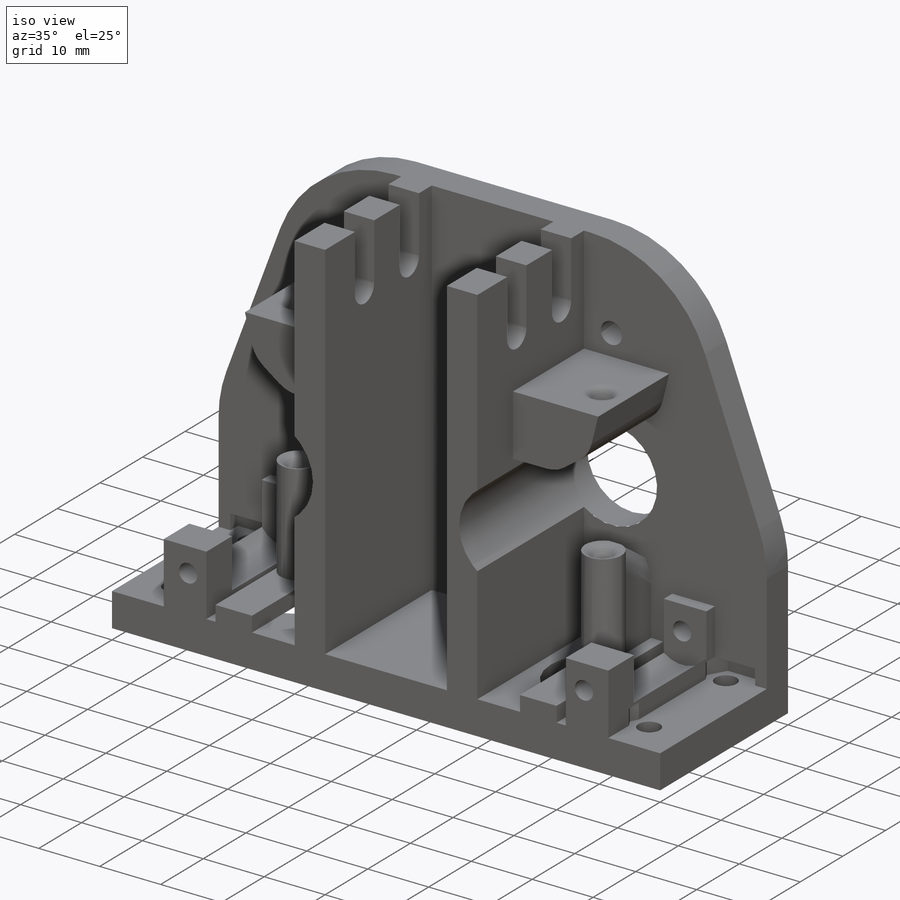
[diagram: iso view]
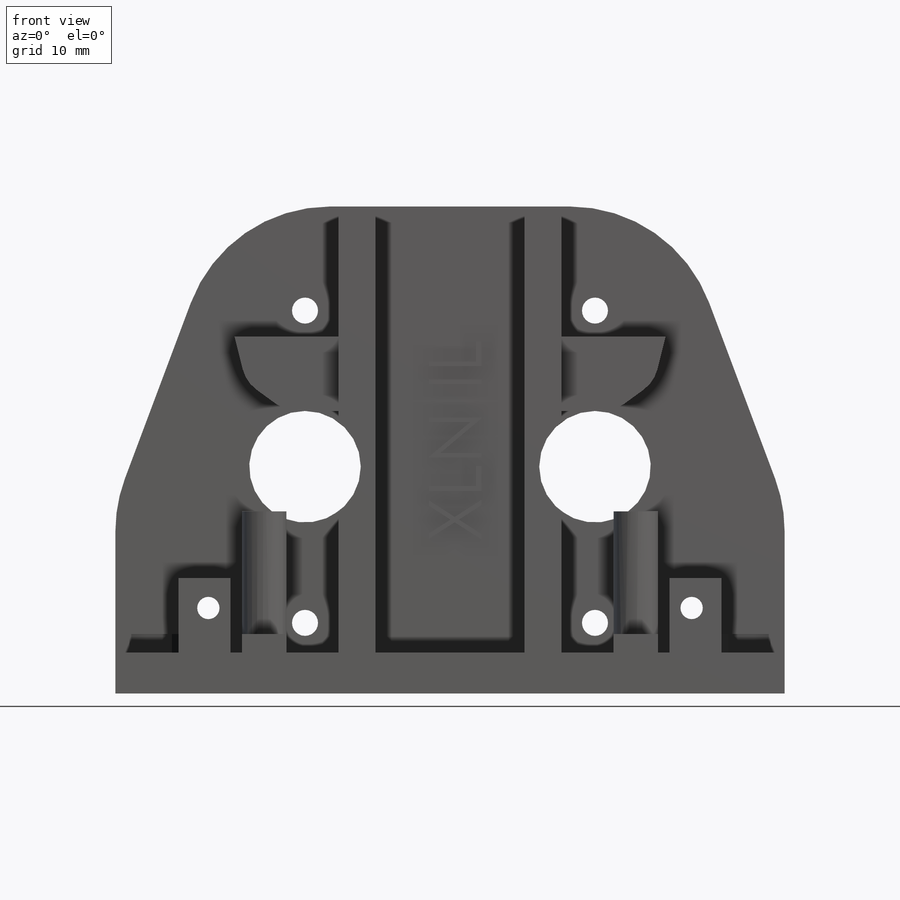
[diagram: front view]
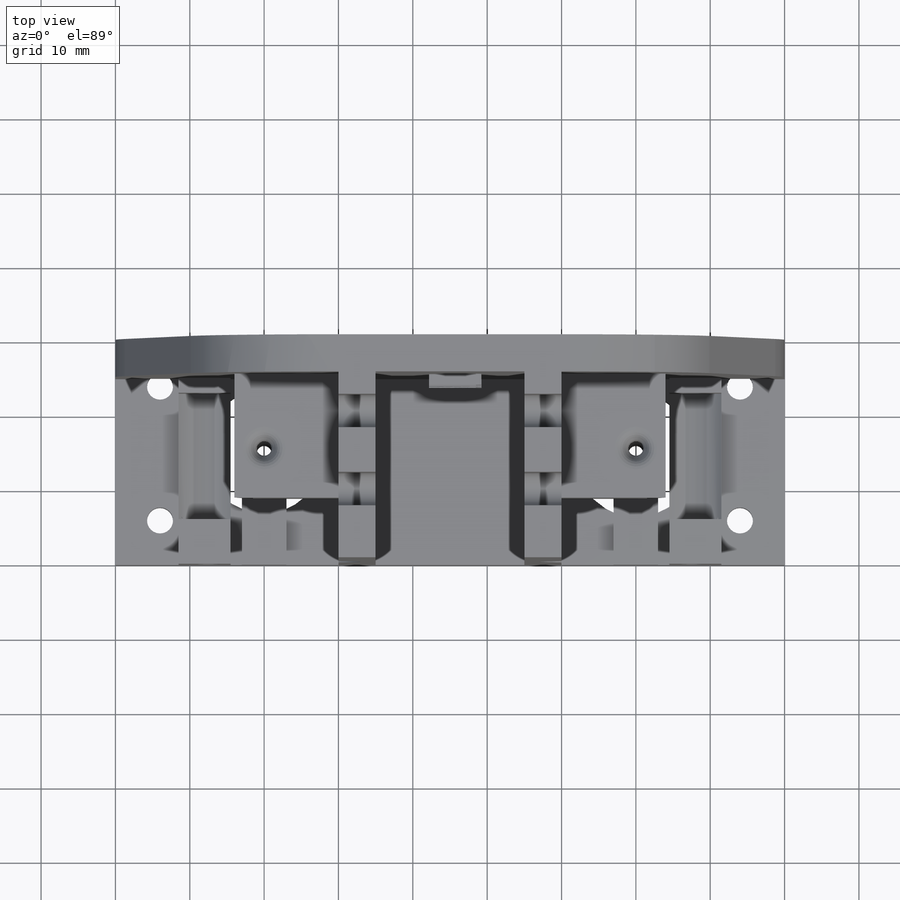
[diagram: top view]
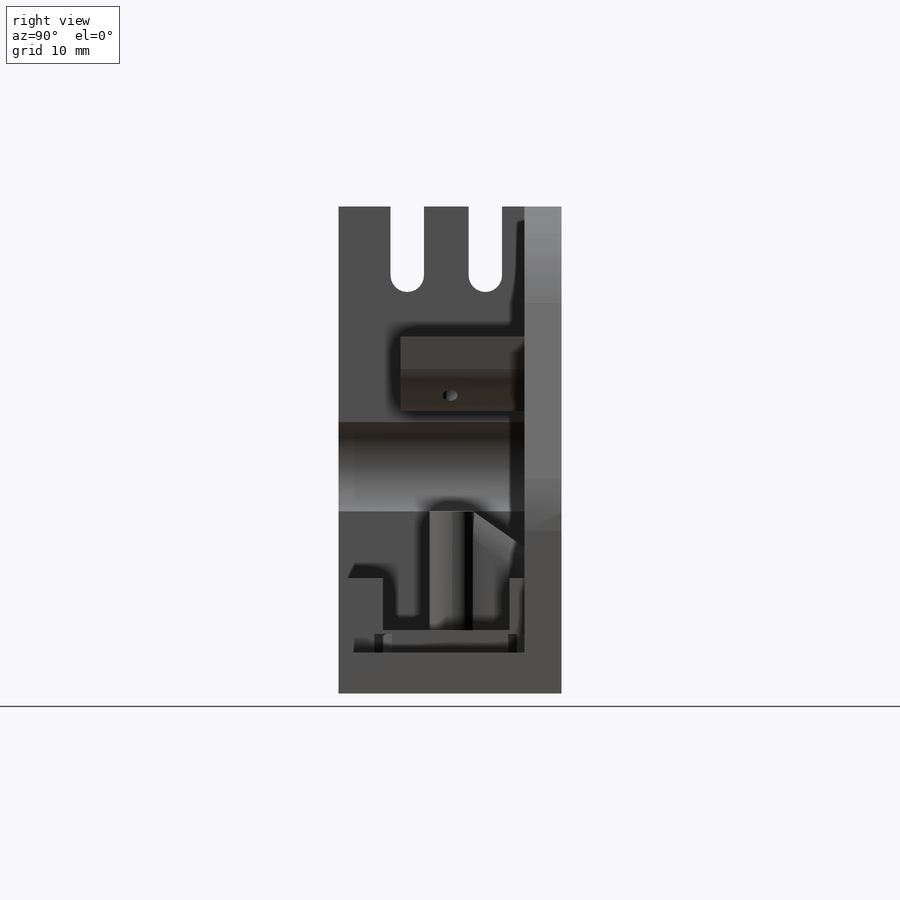
[diagram: right view]
SOLIDWORKS PART (.sldprt)
format: sldprt  version: not decoded by parser v0  size: 857,600 bytes
history: native  units: mm
features: sketch x18, cut_extrude x11, extrude x7, chamfer x4, fillet x4, material x1 (+12 scaffold rows collapsed)
feature tree (57):
  scaffold x12  (default folders/planes/origin — collapsed)
  material  "ABS PC"
  sketch  "Sketch2"  dims[c1.D1=~41.605073mm c1.D2=~117.980955mm c2.D1=30.0mm c2.D2=90.0mm]
  extrude  "Boss-Extrude1"  Depth=5.5mm
  sketch  "Sketch3"  dims[c1.D1=~5.776537mm c1.D5=3.5mm c1.D7=3.5mm c1.D8=3.5mm c1.D9=3.5mm c2.D1=16.5mm c2.D4=12.1mm c2.D10=16.5mm c3.D1=12.1mm c3.D2=20.0mm c3.D3=50.0mm c3.D4=15.0mm c3.D6=6.0mm c3.D7=6.0mm c3.D8=6.0mm c3.D9=6.0mm c4.D4=15.25mm c4.D10=15.25mm]
  cut_extrude  "Cut-Extrude1"  [1 undecoded]
  sketch  "Sketch4"  dims[c1.D1=~6.513994mm c1.D2=~99.755771mm c2.D1=5.0mm c2.D2=20.0mm c2.D3=5.0mm]
  extrude  "Boss-Extrude2"  Depth=60mm
  sketch  "Sketch5"  dims[c1.D1=9.0mm c1.D2=~3.732391mm c1.D3=9.0mm c1.D4=3.5mm c2.D1=~4.485896mm c2.D2=~4.485896mm c2.D3=~5.079303mm c2.D4=3.5mm c2.D5=15.0mm c2.D6=3.5mm c2.D7=3.5mm c3.D2=42.0mm c3.D3=21.0mm c3.D1=9.5mm c4.D2=42.0mm c4.D3=21.0mm c4.D6=25.5mm c4.D7=25.5mm]
  cut_extrude  "Cut-Extrude2"  [1 undecoded]
  sketch  "Sketch7"  dims[c1.D1=~9.411349mm c1.D2=~25.623771mm c2.D1=~9.889674mm c2.D2=~24.721048mm c3.D1=7.0mm c3.D2=14.5mm c3.D3=14.5mm]
  extrude  "Boss-Extrude3"  Depth=10mm
  sketch  "Sketch9"  dims[D1=5.0mm D2=7.0mm]
  cut_extrude  "Cut-Extrude6"  Depth=17mm
  sketch  "Sketch10"  dims[D1=3.0mm]
  cut_extrude  "Cut-Extrude7"  [1 undecoded]
  sketch  "Sketch11"  dims[D1=4.5mm D2=5.25mm D3=15.75mm D4=9.25mm]
  cut_extrude  "Cut-Extrude8"  [1 undecoded]
  sketch  "Sketch12"  dims[c1.D1=~12.976231mm c1.D2=~6.563698mm c2.D1=2.0mm c2.D2=10.0mm c2.D3=10.0mm c2.D4=~13.19486mm]
  extrude  "Boss-Extrude4"  [1 undecoded]
  chamfer  "Chamfer1"  Distance=10mm Angle=14deg
  chamfer  "Chamfer2"  Distance=4mm Angle=40deg
  fillet  "Fillet1"  Radius=5mm
  sketch  "Sketch14"  dims[D1=15.0mm D2=40.0mm]
  cut_extrude  "Cut-Extrude11"  [1 undecoded]
  fillet  "Fillet2"  Radius=20mm
  sketch  "Sketch18"  dims[D1=5.5mm]
  cut_extrude  "Cut-Extrude12"  Depth=2.5mm
  sketch  "Sketch19"  dims[D1=2.5mm]
  cut_extrude  "Cut-Extrude13"  [1 undecoded]
  sketch  "Sketch17"  dims[D1=~23.079921mm]
  extrude  "Boss-Extrude5"  Depth=1.5mm
  sketch  "Sketch20"  dims[D1=3.0mm D2=6.0mm]
  extrude  "Boss-Extrude6"  Depth=2.5mm
  sketch  "Sketch22"  dims[D1=2.0mm]
  extrude  "Boss-Extrude7"  Depth=16.5mm
  sketch  "Sketch13"  dims[c1.D1=2.0mm c1.D4=2.0mm c1.D5=2.0mm c1.D2=10.0mm c1.D3=10.0mm c2.D4=10.0mm c2.D5=10.0mm]
  cut_extrude  "Cut-Extrude9"  [1 undecoded]
  chamfer  "Chamfer3"  Distance=1mm Angle=60deg
  fillet  "Fillet3"  Radius=1.5mm
  sketch  "Sketch23"  dims[c1.D1=~6.845262mm c2.D1=35.0deg]
  cut_extrude  "Cut-Extrude14"  [1 undecoded]
  sketch  "Sketch24"
  cut_extrude  "Cut-Extrude15"  [1 undecoded]
  chamfer  "Chamfer4"  Distance=1mm Angle=55deg
  fillet  "Fillet4"  Radius=5mm
decode coverage: 33 of 44 modeling features carry decoded parameters
note: ~ marks probable driven/reference dimensions
note: 10 parameter values undecoded
summary: no parameter record found for 10 features
note: suppression state not decoded; provenance and decode notes live in map.json
